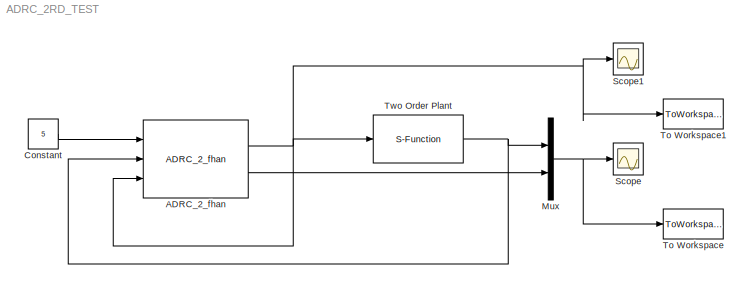
MODEL ADRC_2RD_TEST
KIND model
BLOCK [Reference] ADRC_2_fhan  REF=ADRC/ADRC/ADRC_2rd/ADRC_2_fhan
  ESO = [100,300,1000,0.01]
  FunctionWithSeparateData = off
  GeneratePreprocessorConditionals = off
  NLSEF = [0.3,5,0.03]
  Ports = [3, 2]
  RTWMemSecDataConstants = Inherit from model
  RTWMemSecDataInternal = Inherit from model
  RTWMemSecDataParameters = Inherit from model
  RTWMemSecFuncExecute = Inherit from model
  RTWMemSecFuncInitTerm = Inherit from model
  SID = 30
  ShowPortLabels = FromPortIcon
  SourceBlock = ADRC/ADRC/ADRC_2rd/ADRC_2_fhan
  SystemSampleTime = -1
  TD = [0.1,0.01]
  b0 = 1
  h = 0.01
BLOCK [Constant] Constant
  SID = 3
  Value = 5
BLOCK [Mux] Mux
  DisplayOption = bar
  Inputs = 2
  Ports = [2, 1]
  SID = 23
BLOCK [Scope] Scope
  DataFormat = Array
  Floating = off
  LimitDataPoints = off
  NumInputPorts = 1
  Ports = [1]
  SID = 4
  SampleTime = 0
  SaveToWorkspace = on
  TimeRange = 20
  YMax = 5.0015
  YMin = 4.9985
BLOCK [Scope] Scope1
  DataFormat = Array
  Floating = off
  NumInputPorts = 1
  Ports = [1]
  SID = 5
  SampleTime = 0
  SaveName = ScopeData1
  SaveToWorkspace = on
  TimeRange = 50
  YMax = 250
  YMin = 0
BLOCK [ToWorkspace] To Workspace
  MaxDataPoints = inf
  Ports = [1]
  SID = 24
  SampleTime = 1
  SaveFormat = Array
  VariableName = output
BLOCK [ToWorkspace] To Workspace1
  MaxDataPoints = inf
  Ports = [1]
  SID = 25
  SampleTime = 1
  SaveFormat = Array
  VariableName = in_control
BLOCK [S-Function] Two Order  Plant
  EnableBusSupport = off
  FunctionName = Plant1_x1x2wt
  Ports = [1, 1]
  SID = 33
NET ADRC_2_fhan:1 -> ADRC_2_fhan:3, Scope1:1, To Workspace1:1, Two Order  Plant:1
LINE ADRC_2_fhan:2 -> Mux:2
LINE Constant:1 -> ADRC_2_fhan:1
NET Mux:1 -> Scope:1, To Workspace:1
NET Two Order  Plant:1 -> ADRC_2_fhan:2, Mux:1
note: NET lines group one-source signal fan-out (src -> all destinations, sorted); 1:1 wires keep LINE
